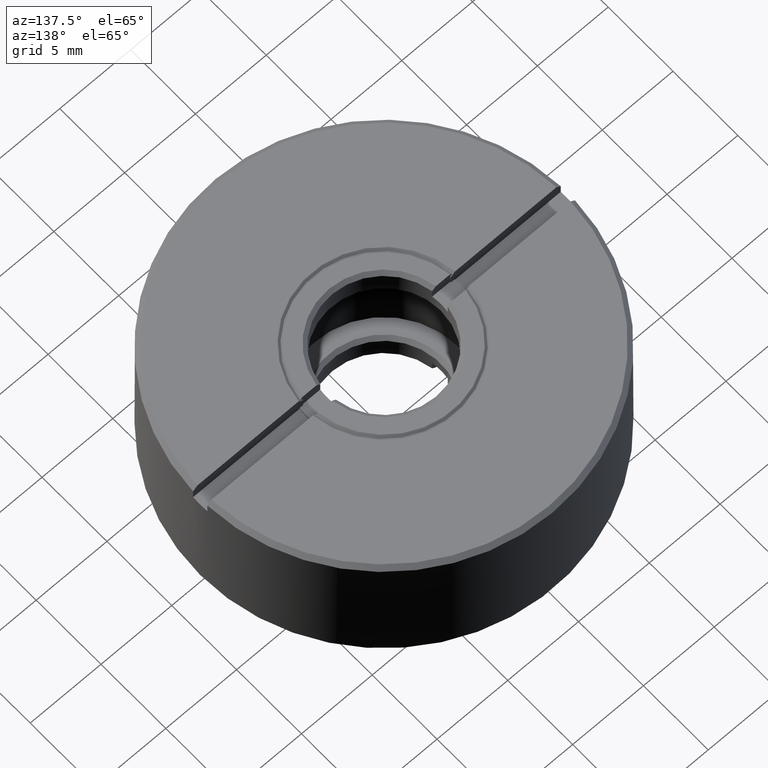
[diagram: clean part render]
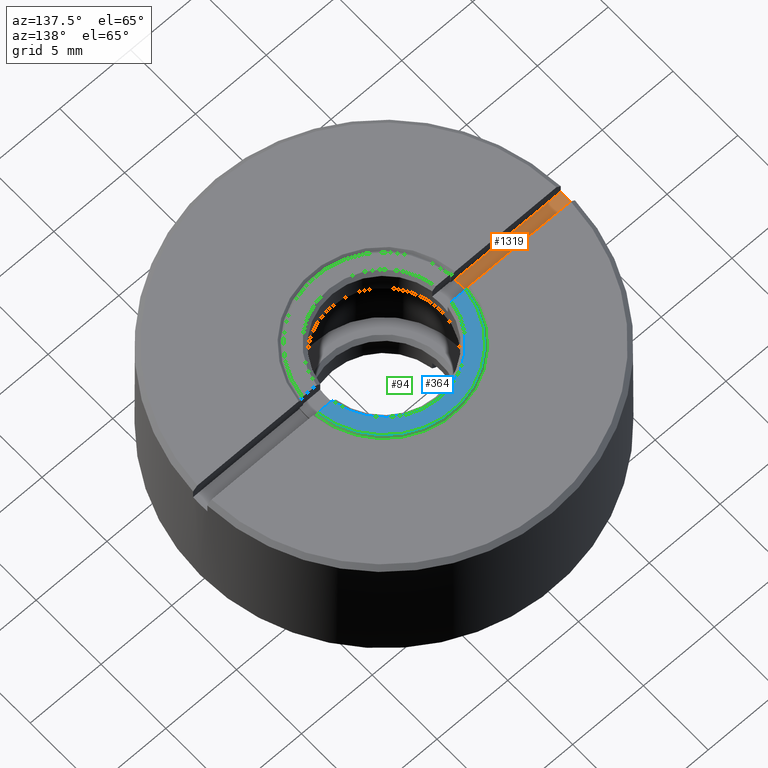
[diagram: same view with three faces highlighted in distinct colors, each labeled with its STEP entity id]
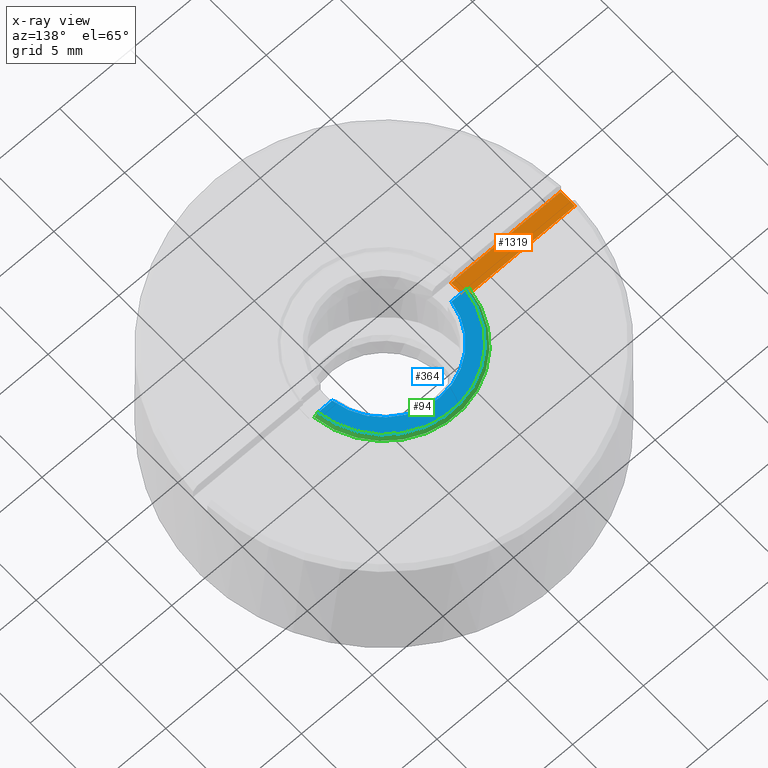
[diagram: x-ray of the same camera — body ghosted, the three highlighted faces saturated]
A machine part, auxiliary view with three faces highlighted in distinct colors.
The next image is the same camera in x-ray (body ghosted, the three faces saturated) — at least one of them is partly hidden behind the body in this view.
Their STEP definitions:

[orange] entity #1319 — the highlighted planar face has unit normal (0, 0, 1).
#57 = VECTOR ( 'NONE', #225, 1000.000000000000000 ) ;
#106 = ORIENTED_EDGE ( 'NONE', *, *, #1522, .T. ) ;
#156 = DIRECTION ( 'NONE',  ( 1.000000000000000000, 7.105427357601001859E-15, 0.000000000000000000 ) ) ;
#167 = VECTOR ( 'NONE', #489, 1000.000000000000000 ) ;
#204 = LINE ( 'NONE', #310, #167 ) ;
#211 = EDGE_CURVE ( 'NONE', #515, #761, #431, .T. ) ;
#225 = DIRECTION ( 'NONE',  ( -1.000000000000000000, -0.000000000000000000, -0.000000000000000000 ) ) ;
#239 = PLANE ( 'NONE',  #523 ) ;
#269 = FACE_OUTER_BOUND ( 'NONE', #819, .T. ) ;
#276 = CARTESIAN_POINT ( 'NONE',  ( 0.000000000000000000, 0.000000000000000000, 4.000000000000000000 ) ) ;
#310 = CARTESIAN_POINT ( 'NONE',  ( -12.98836017363239037, -0.5500000000000000444, 4.000000000000000000 ) ) ;
#329 = LINE ( 'NONE', #1578, #57 ) ;
#359 = CIRCLE ( 'NONE', #1589, 13.00000000000000355 ) ;
#431 = CIRCLE ( 'NONE', #726, 5.250000000000000000 ) ;
#489 = DIRECTION ( 'NONE',  ( 1.000000000000000000, 0.000000000000000000, 0.000000000000000000 ) ) ;
#499 = VERTEX_POINT ( 'NONE', #590 ) ;
#515 = VERTEX_POINT ( 'NONE', #965 ) ;
#523 = AXIS2_PLACEMENT_3D ( 'NONE', #1474, #762, #1498 ) ;
#528 = DIRECTION ( 'NONE',  ( -1.000000000000000000, 0.000000000000000000, 0.000000000000000000 ) ) ;
#565 = ORIENTED_EDGE ( 'NONE', *, *, #211, .T. ) ;
#590 = CARTESIAN_POINT ( 'NONE',  ( -12.98836017363239037, 0.5500000000000000444, 4.000000000000000000 ) ) ;
#722 = ORIENTED_EDGE ( 'NONE', *, *, #811, .T. ) ;
#726 = AXIS2_PLACEMENT_3D ( 'NONE', #1271, #907, #156 ) ;
#761 = VERTEX_POINT ( 'NONE', #1193 ) ;
#762 = DIRECTION ( 'NONE',  ( 0.000000000000000000, 0.000000000000000000, 1.000000000000000000 ) ) ;
#811 = EDGE_CURVE ( 'NONE', #761, #499, #329, .T. ) ;
#819 = EDGE_LOOP ( 'NONE', ( #871, #106, #565, #722 ) ) ;
#871 = ORIENTED_EDGE ( 'NONE', *, *, #1074, .T. ) ;
#907 = DIRECTION ( 'NONE',  ( 0.000000000000000000, 0.000000000000000000, -1.000000000000000000 ) ) ;
#965 = CARTESIAN_POINT ( 'NONE',  ( -5.221110992882644908, -0.5500000000000000444, 4.000000000000000000 ) ) ;
#1030 = VERTEX_POINT ( 'NONE', #1405 ) ;
#1074 = EDGE_CURVE ( 'NONE', #499, #1030, #359, .T. ) ;
#1193 = CARTESIAN_POINT ( 'NONE',  ( -5.221110992882644908, 0.5500000000000000444, 4.000000000000000888 ) ) ;
#1271 = CARTESIAN_POINT ( 'NONE',  ( 0.000000000000000000, 0.000000000000000000, 4.000000000000000888 ) ) ;
#1319 = ADVANCED_FACE ( 'NONE', ( #269 ), #239, .T. ) ;
#1405 = CARTESIAN_POINT ( 'NONE',  ( -12.98836017363239037, -0.5500000000000000444, 4.000000000000000000 ) ) ;
#1474 = CARTESIAN_POINT ( 'NONE',  ( 0.000000000000000000, 0.000000000000000000, 4.000000000000000000 ) ) ;
#1498 = DIRECTION ( 'NONE',  ( 1.000000000000000000, 0.000000000000000000, -0.000000000000000000 ) ) ;
#1522 = EDGE_CURVE ( 'NONE', #1030, #515, #204, .T. ) ;
#1541 = DIRECTION ( 'NONE',  ( 0.000000000000000000, 0.000000000000000000, 1.000000000000000000 ) ) ;
#1578 = CARTESIAN_POINT ( 'NONE',  ( -12.98836017363239037, 0.5500000000000000444, 4.000000000000000888 ) ) ;
#1589 = AXIS2_PLACEMENT_3D ( 'NONE', #276, #1541, #528 ) ;

[blue] entity #364 — the highlighted planar face has unit normal (0, 0, 1).
#53 = VERTEX_POINT ( 'NONE', #737 ) ;
#125 = LINE ( 'NONE', #1431, #1259 ) ;
#135 = AXIS2_PLACEMENT_3D ( 'NONE', #1288, #426, #928 ) ;
#175 = CARTESIAN_POINT ( 'NONE',  ( 0.000000000000000000, 0.000000000000000000, 5.000000000000000000 ) ) ;
#183 = PLANE ( 'NONE',  #135 ) ;
#202 = ORIENTED_EDGE ( 'NONE', *, *, #1012, .F. ) ;
#255 = LINE ( 'NONE', #974, #1593 ) ;
#364 = ADVANCED_FACE ( 'NONE', ( #1294 ), #183, .T. ) ;
#384 = CIRCLE ( 'NONE', #1508, 4.250000000013187673 ) ;
#426 = DIRECTION ( 'NONE',  ( 0.000000000000000000, 0.000000000000000000, 1.000000000000000000 ) ) ;
#456 = CARTESIAN_POINT ( 'NONE',  ( 0.000000000000000000, 0.000000000000000000, 5.000000000000000000 ) ) ;
#471 = EDGE_CURVE ( 'NONE', #1606, #1153, #384, .T. ) ;
#474 = DIRECTION ( 'NONE',  ( 1.000000000000000000, 0.000000000000000000, -0.000000000000000000 ) ) ;
#564 = DIRECTION ( 'NONE',  ( 1.000000000000000000, 0.000000000000000000, -0.000000000000000000 ) ) ;
#616 = ORIENTED_EDGE ( 'NONE', *, *, #471, .T. ) ;
#624 = ORIENTED_EDGE ( 'NONE', *, *, #1329, .T. ) ;
#676 = DIRECTION ( 'NONE',  ( -1.000000000000000000, 0.000000000000000000, 0.000000000000000000 ) ) ;
#700 = EDGE_LOOP ( 'NONE', ( #1475, #616, #624, #202 ) ) ;
#737 = CARTESIAN_POINT ( 'NONE',  ( 5.215601595146366343, 0.6000000000000000888, 5.000000000000000000 ) ) ;
#809 = CARTESIAN_POINT ( 'NONE',  ( -4.207433897294102110, 0.6000000000000000888, 4.999999999998509637 ) ) ;
#921 = CARTESIAN_POINT ( 'NONE',  ( 4.207433897293319625, 0.6000000000000000888, 4.999999999997735145 ) ) ;
#928 = DIRECTION ( 'NONE',  ( 1.000000000000000000, 0.000000000000000000, -0.000000000000000000 ) ) ;
#960 = DIRECTION ( 'NONE',  ( -0.000000000000000000, 0.000000000000000000, -1.000000000000000000 ) ) ;
#974 = CARTESIAN_POINT ( 'NONE',  ( 0.000000000000000000, 0.6000000000000000888, 5.000000000000000000 ) ) ;
#1012 = EDGE_CURVE ( 'NONE', #1068, #53, #1333, .T. ) ;
#1016 = AXIS2_PLACEMENT_3D ( 'NONE', #175, #1287, #676 ) ;
#1025 = CARTESIAN_POINT ( 'NONE',  ( -5.215601595153295911, 0.6000000000000000888, 4.999999999993116617 ) ) ;
#1068 = VERTEX_POINT ( 'NONE', #1025 ) ;
#1153 = VERTEX_POINT ( 'NONE', #921 ) ;
#1259 = VECTOR ( 'NONE', #564, 1000.000000000000000 ) ;
#1287 = DIRECTION ( 'NONE',  ( 0.000000000000000000, 0.000000000000000000, -1.000000000000000000 ) ) ;
#1288 = CARTESIAN_POINT ( 'NONE',  ( 0.000000000000000000, 0.000000000000000000, 5.000000000000000000 ) ) ;
#1294 = FACE_OUTER_BOUND ( 'NONE', #700, .T. ) ;
#1329 = EDGE_CURVE ( 'NONE', #1153, #53, #255, .T. ) ;
#1333 = CIRCLE ( 'NONE', #1016, 5.249999999932697392 ) ;
#1431 = CARTESIAN_POINT ( 'NONE',  ( 0.000000000000000000, 0.6000000000000000888, 5.000000000000000000 ) ) ;
#1459 = DIRECTION ( 'NONE',  ( 1.000000000000000000, -8.881784197001252323E-16, 0.000000000000000000 ) ) ;
#1475 = ORIENTED_EDGE ( 'NONE', *, *, #1576, .T. ) ;
#1508 = AXIS2_PLACEMENT_3D ( 'NONE', #456, #960, #1459 ) ;
#1576 = EDGE_CURVE ( 'NONE', #1068, #1606, #125, .T. ) ;
#1593 = VECTOR ( 'NONE', #474, 1000.000000000000000 ) ;
#1606 = VERTEX_POINT ( 'NONE', #809 ) ;

[green] entity #94 — the highlighted conical surface has half-angle 45 deg.
#53 = VERTEX_POINT ( 'NONE', #737 ) ;
#80 = VERTEX_POINT ( 'NONE', #459 ) ;
#94 = ADVANCED_FACE ( 'NONE', ( #233 ), #1533, .T. ) ;
#104 = CARTESIAN_POINT ( 'NONE',  ( -5.467174773109372055, 0.6000000000000000888, 4.749999999957832841 ) ) ;
#105 = CARTESIAN_POINT ( 'NONE',  ( 5.383329001543547321, 0.6000000000000000888, 4.833345361255766193 ) ) ;
#174 = ORIENTED_EDGE ( 'NONE', *, *, #897, .F. ) ;
#175 = CARTESIAN_POINT ( 'NONE',  ( 0.000000000000000000, 0.000000000000000000, 5.000000000000000000 ) ) ;
#186 = CIRCLE ( 'NONE', #520, 5.499999999999998224 ) ;
#220 = EDGE_CURVE ( 'NONE', #484, #1068, #548, .T. ) ;
#233 = FACE_OUTER_BOUND ( 'NONE', #1424, .T. ) ;
#284 = CARTESIAN_POINT ( 'NONE',  ( -5.383329001543549985, 0.6000000000000000888, 4.833345361255764416 ) ) ;
#343 = CARTESIAN_POINT ( 'NONE',  ( 5.299471846633782235, 0.6000000000000000888, 4.916679272866913308 ) ) ;
#371 = CARTESIAN_POINT ( 'NONE',  ( 0.000000000000000000, 0.000000000000000000, 4.749999999999998224 ) ) ;
#404 = CARTESIAN_POINT ( 'NONE',  ( -5.467174773109372055, 0.6000000000000000888, 4.749999999957832841 ) ) ;
#459 = CARTESIAN_POINT ( 'NONE',  ( 5.467174773109370278, 0.6000000000000000888, 4.749999999957834618 ) ) ;
#484 = VERTEX_POINT ( 'NONE', #104 ) ;
#487 = DIRECTION ( 'NONE',  ( -1.000000000000000000, 0.000000000000000000, 0.000000000000000000 ) ) ;
#520 = AXIS2_PLACEMENT_3D ( 'NONE', #371, #1112, #1120 ) ;
#548 = B_SPLINE_CURVE_WITH_KNOTS ( 'NONE', 3,
 ( #404, #284, #620, #677 ),
 .UNSPECIFIED., .F., .F.,
 ( 4, 4 ),
 ( 3.984251922524116163E-14, 0.0003546675398965904585 ),
 .UNSPECIFIED. ) ;
#592 = CARTESIAN_POINT ( 'NONE',  ( 5.467174773109370278, 0.6000000000000000888, 4.749999999957834618 ) ) ;
#620 = CARTESIAN_POINT ( 'NONE',  ( -5.299471846633782235, 0.6000000000000000888, 4.916679272866911532 ) ) ;
#676 = DIRECTION ( 'NONE',  ( -1.000000000000000000, 0.000000000000000000, 0.000000000000000000 ) ) ;
#677 = CARTESIAN_POINT ( 'NONE',  ( -5.215601595153295911, 0.6000000000000000888, 4.999999999993116617 ) ) ;
#716 = EDGE_CURVE ( 'NONE', #53, #80, #1159, .T. ) ;
#737 = CARTESIAN_POINT ( 'NONE',  ( 5.215601595146366343, 0.6000000000000000888, 5.000000000000000000 ) ) ;
#775 = AXIS2_PLACEMENT_3D ( 'NONE', #1489, #1237, #487 ) ;
#897 = EDGE_CURVE ( 'NONE', #484, #80, #186, .T. ) ;
#1003 = ORIENTED_EDGE ( 'NONE', *, *, #220, .T. ) ;
#1012 = EDGE_CURVE ( 'NONE', #1068, #53, #1333, .T. ) ;
#1016 = AXIS2_PLACEMENT_3D ( 'NONE', #175, #1287, #676 ) ;
#1025 = CARTESIAN_POINT ( 'NONE',  ( -5.215601595153295911, 0.6000000000000000888, 4.999999999993116617 ) ) ;
#1068 = VERTEX_POINT ( 'NONE', #1025 ) ;
#1073 = ORIENTED_EDGE ( 'NONE', *, *, #716, .T. ) ;
#1112 = DIRECTION ( 'NONE',  ( -0.000000000000000000, -0.000000000000000000, -1.000000000000000000 ) ) ;
#1120 = DIRECTION ( 'NONE',  ( 1.000000000000000000, 0.000000000000000000, 0.000000000000000000 ) ) ;
#1159 = B_SPLINE_CURVE_WITH_KNOTS ( 'NONE', 3,
 ( #1219, #343, #105, #592 ),
 .UNSPECIFIED., .F., .F.,
 ( 4, 4 ),
 ( 1.953425441047007812E-14, 0.0003546675399266632995 ),
 .UNSPECIFIED. ) ;
#1219 = CARTESIAN_POINT ( 'NONE',  ( 5.215601595146366343, 0.6000000000000000888, 5.000000000000000000 ) ) ;
#1237 = DIRECTION ( 'NONE',  ( 0.000000000000000000, 0.000000000000000000, -1.000000000000000000 ) ) ;
#1287 = DIRECTION ( 'NONE',  ( 0.000000000000000000, 0.000000000000000000, -1.000000000000000000 ) ) ;
#1333 = CIRCLE ( 'NONE', #1016, 5.249999999932697392 ) ;
#1424 = EDGE_LOOP ( 'NONE', ( #1003, #1432, #1073, #174 ) ) ;
#1432 = ORIENTED_EDGE ( 'NONE', *, *, #1012, .T. ) ;
#1489 = CARTESIAN_POINT ( 'NONE',  ( 0.000000000000000000, 0.000000000000000000, 4.750000000005911716 ) ) ;
#1533 = CONICAL_SURFACE ( 'NONE', #775, 5.499999999926785677, 0.7853981633974482790 ) ;